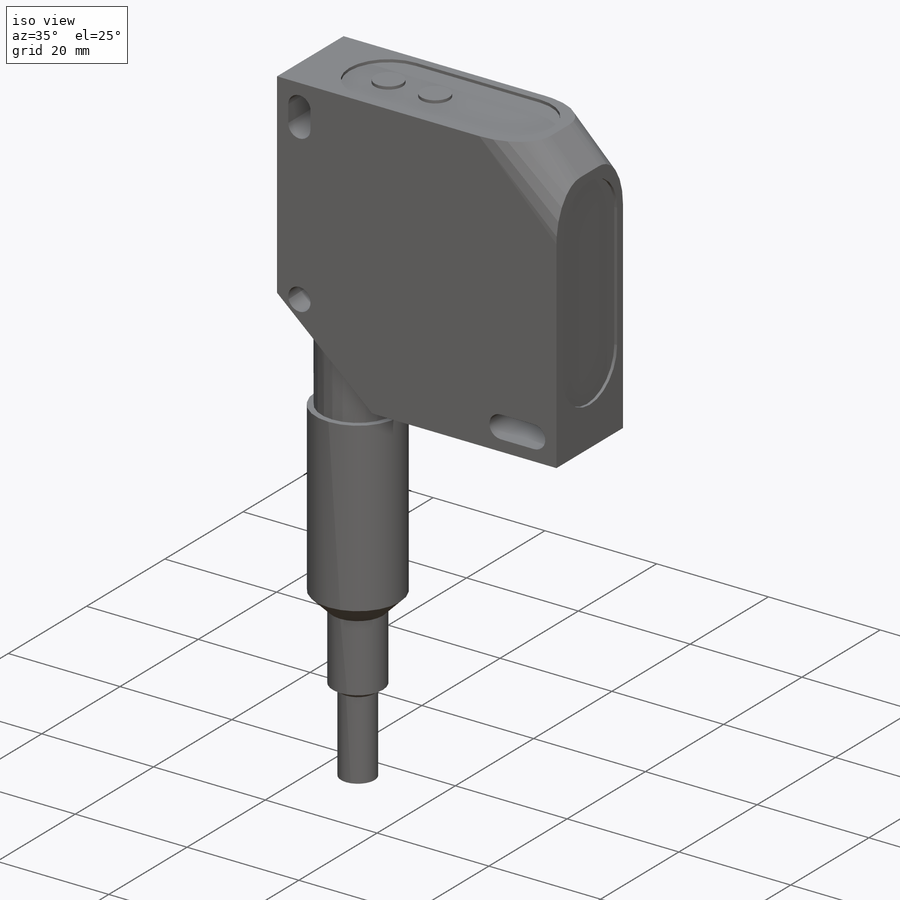
[diagram: iso view]
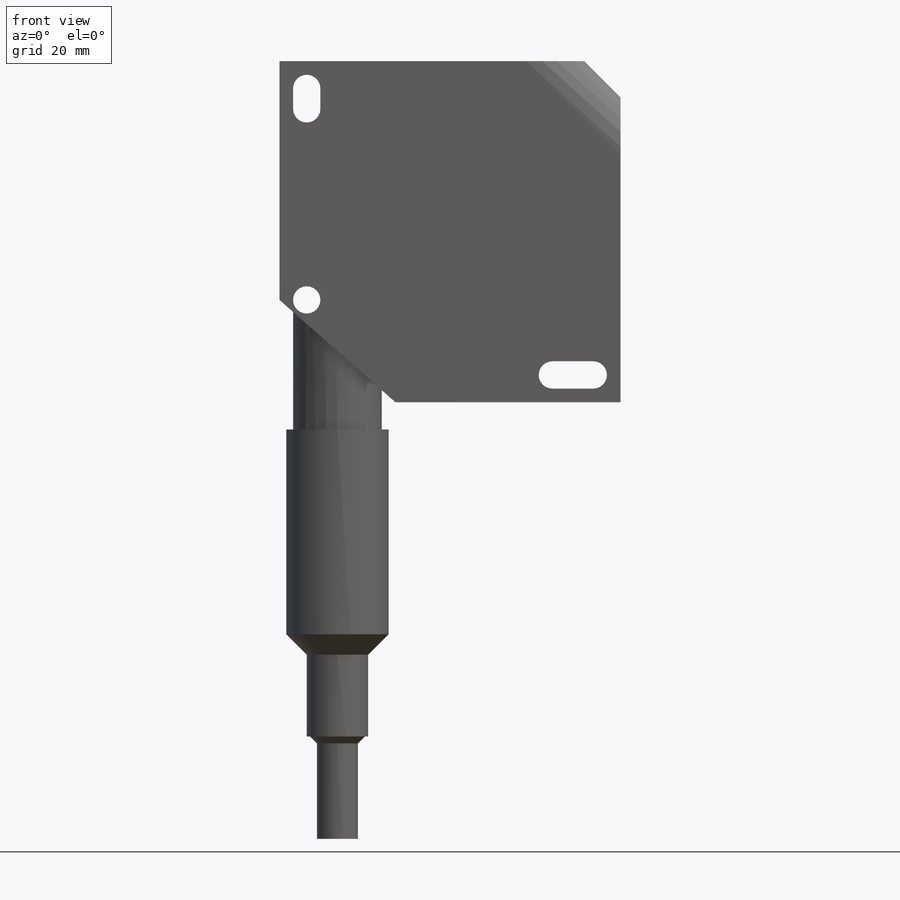
[diagram: front view]
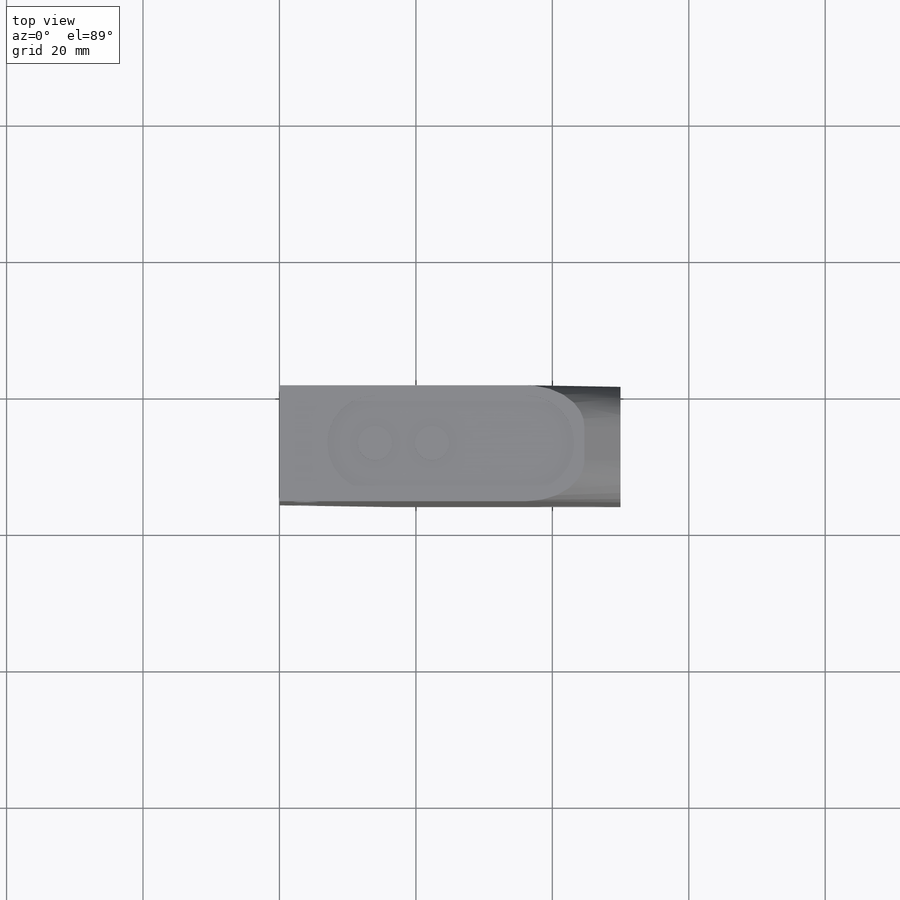
[diagram: top view]
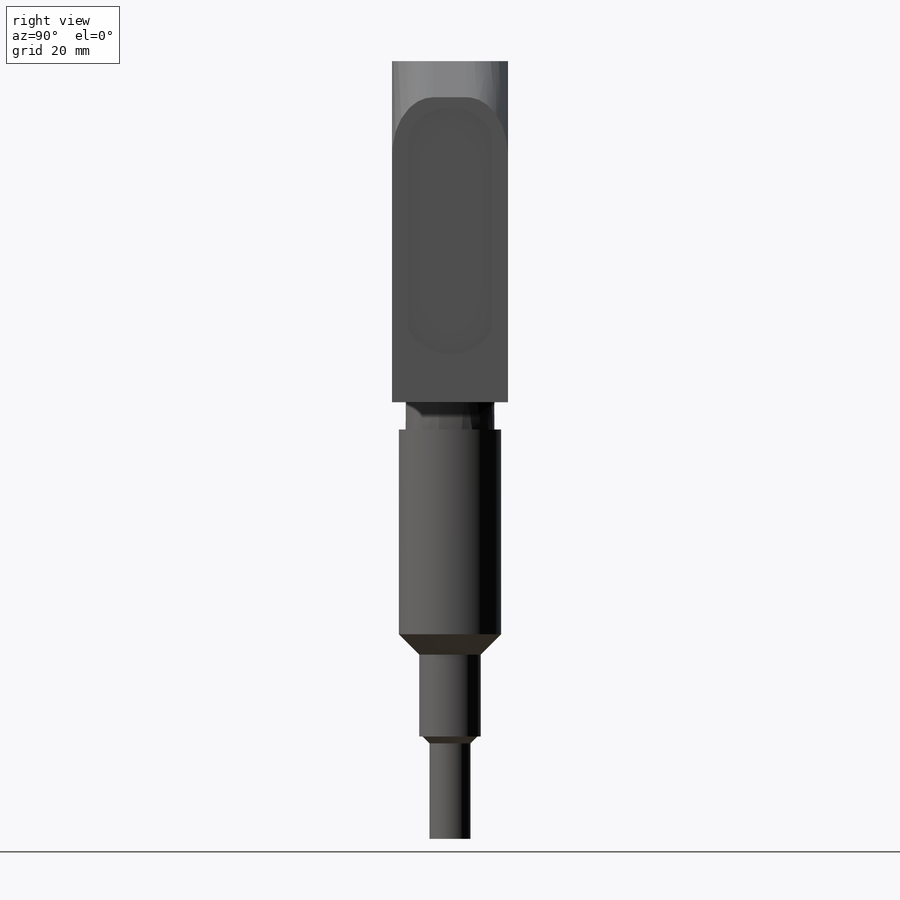
[diagram: right view]
SOLIDWORKS PART (.sldprt)
format: sldprt  version: not decoded by parser v0  size: 212,480 bytes
history: native  units: mm
features: sketch x7, extrude x5, plane x3, chamfer x2, cut_extrude x2, material x1, fillet x1 (+11 scaffold rows collapsed)
feature tree (32):
  scaffold x11  (default folders/planes/origin — collapsed)
  material  "Matériau <non spécifié>"
  plane  "Plan de face"
  plane  "Plan de dessus"
  plane  "Plan de droite"
  sketch  "Esquisse1"  dims[c1.D11=4.0mm c1.D1=50.0mm c1.D2=50.0mm c1.D3=33.0mm c1.D4=35.0mm c1.D5=~8.172088mm c2.D5=45.0deg c2.D6=7.5mm c2.D7=4.0mm c2.D8=3.0mm c2.D9=2.0mm c2.D10=4.0mm c2.D12=4.0mm c2.D13=4.0mm c2.D14=6.0mm c2.D15=4.0mm]
  extrude  "Extrusion1"  Depth=17mm
  fillet  "Congé1"  Radius=6mm
  sketch  "Esquisse5"  dims[D1=13.0mm]
  extrude  "Extrusion3"  Depth=4mm
  sketch  "Esquisse6"  dims[D1=15.0mm]
  extrude  "Extrusion4"  Depth=30mm
  sketch  "Esquisse7"  dims[D1=9.0mm]
  extrude  "Extrusion5"  Depth=15mm
  chamfer  "Chanfrein2"  Distance=3mm Angle=45deg
  sketch  "Esquisse8"  dims[D1=6.0mm]
  extrude  "Extrusion6"  Depth=15mm
  chamfer  "Chanfrein3"  Distance=1mm Angle=45deg
  sketch  "Esquisse9"  dims[D1=1.5mm D2=7.0mm D3=1.5mm]
  cut_extrude  "Extrusion7"  Depth=0.5mm
  sketch  "Esquisse10"  dims[D4=5.0mm D1=7.0mm D2=1.5mm D3=1.5mm D5=~8.34835mm]
  cut_extrude  "Extrusion8"  Depth=0.5mm
decode coverage: 17 of 17 modeling features carry decoded parameters
note: ~ marks probable driven/reference dimensions
note: suppression state not decoded; provenance and decode notes live in map.json
